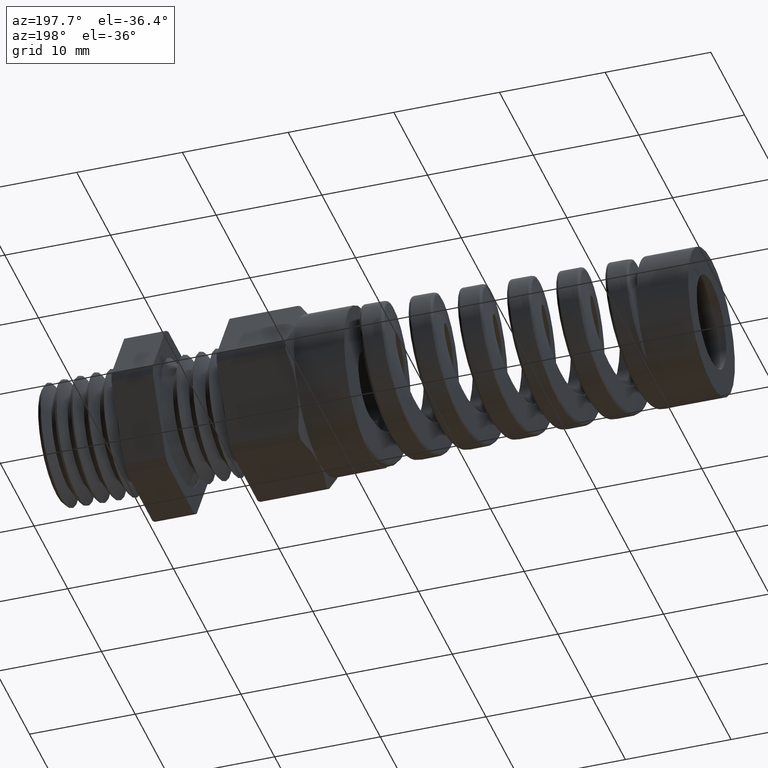
[diagram: clean part render]
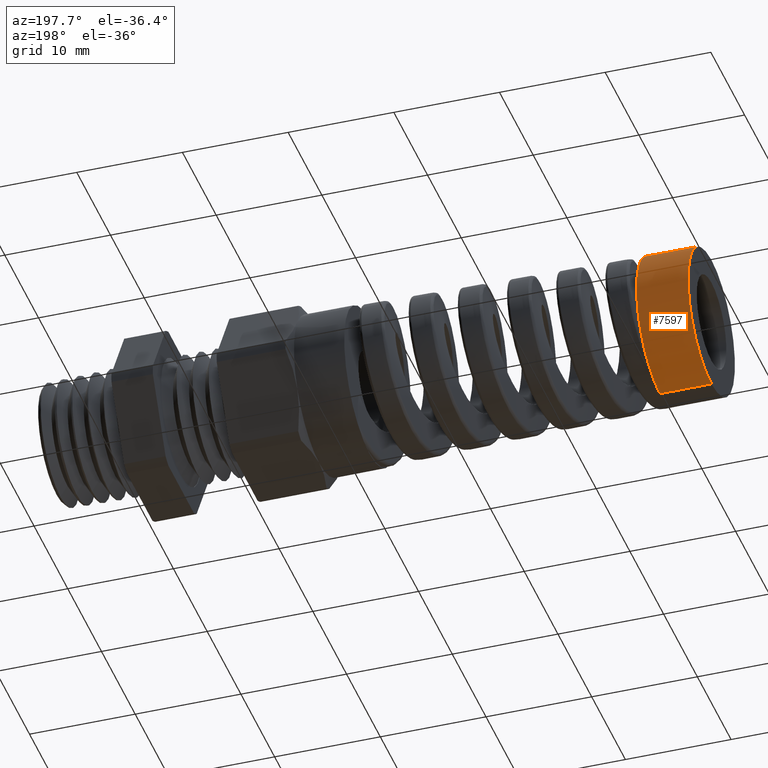
[diagram: same view with one face highlighted and labeled with its STEP entity id]
A machine part, auxiliary view. The second image highlights one B-rep face of the part: STEP entity #7597.
In plain terms, the highlighted cylindrical surface (partial cylindrical patch) has radius 6.9301 mm, axis along (1, 0, 0).
Its self-contained STEP definition (entity closure, byte-faithful):
#1094 = LINE ( 'NONE', #1165, #1164 ) ;
#1151 = CARTESIAN_POINT ( 'NONE',  ( -1.938299999999999900, 0.0000000000000000000, -0.2728399223203811800 ) ) ;
#1152 = DIRECTION ( 'NONE',  ( 0.0000000000000000000, 0.0000000000000000000, -1.000000000000000000 ) ) ;
#1153 = DIRECTION ( 'NONE',  ( 1.000000000000000000, 0.0000000000000000000, 0.0000000000000000000 ) ) ;
#1154 = CARTESIAN_POINT ( 'NONE',  ( -1.938299999999999900, 0.0000000000000000000, 0.0000000000000000000 ) ) ;
#1155 = AXIS2_PLACEMENT_3D ( 'NONE', #1154, #1153, #1152 ) ;
#1156 = CIRCLE ( 'NONE', #1155, 0.2728399223203811800 ) ;
#1157 = CARTESIAN_POINT ( 'NONE',  ( -1.938299999999999900, 0.1106353233695262600, -0.2494021820969335200 ) ) ;
#1158 = DIRECTION ( 'NONE',  ( 0.0000000000000000000, 0.0000000000000000000, 1.000000000000000000 ) ) ;
#1159 = DIRECTION ( 'NONE',  ( -1.000000000000000000, 0.0000000000000000000, 0.0000000000000000000 ) ) ;
#1160 = CARTESIAN_POINT ( 'NONE',  ( -1.938299999999999900, 0.0000000000000000000, 0.0000000000000000000 ) ) ;
#1161 = AXIS2_PLACEMENT_3D ( 'NONE', #1160, #1159, #1158 ) ;
#1162 = CIRCLE ( 'NONE', #1161, 0.2728399223203811200 ) ;
#1163 = DIRECTION ( 'NONE',  ( 1.000000000000000000, 0.0000000000000000000, 0.0000000000000000000 ) ) ;
#1164 = VECTOR ( 'NONE', #1163, 39.37007874015748100 ) ;
#1165 = CARTESIAN_POINT ( 'NONE',  ( -2.129999999999999900, 3.341325375492672300E-017, 0.2728399223203811200 ) ) ;
#1236 = AXIS2_PLACEMENT_3D ( 'NONE', #1309, #1308, #1307 ) ;
#1237 = CYLINDRICAL_SURFACE ( 'NONE', #1236, 0.2728399223203811200 ) ;
#1238 = CIRCLE ( 'NONE', #1306, 0.2728399223203811200 ) ;
#1239 = FACE_OUTER_BOUND ( 'NONE', #7598, .T. ) ;
#1300 = CARTESIAN_POINT ( 'NONE',  ( -1.938299999999999900, 3.341325375492672300E-017, 0.2728399223203811200 ) ) ;
#1301 = CARTESIAN_POINT ( 'NONE',  ( -2.129999999999999900, 0.0000000000000000000, -0.2728399223203811200 ) ) ;
#1302 = CARTESIAN_POINT ( 'NONE',  ( -2.129999999999999900, 3.341325375492672300E-017, 0.2728399223203811200 ) ) ;
#1303 = DIRECTION ( 'NONE',  ( 0.0000000000000000000, 0.0000000000000000000, 1.000000000000000000 ) ) ;
#1304 = DIRECTION ( 'NONE',  ( -1.000000000000000000, 0.0000000000000000000, 0.0000000000000000000 ) ) ;
#1305 = CARTESIAN_POINT ( 'NONE',  ( -2.129999999999999900, 0.0000000000000000000, 0.0000000000000000000 ) ) ;
#1306 = AXIS2_PLACEMENT_3D ( 'NONE', #1305, #1304, #1303 ) ;
#1307 = DIRECTION ( 'NONE',  ( 0.0000000000000000000, 0.0000000000000000000, -1.000000000000000000 ) ) ;
#1308 = DIRECTION ( 'NONE',  ( 1.000000000000000000, 0.0000000000000000000, 0.0000000000000000000 ) ) ;
#1309 = CARTESIAN_POINT ( 'NONE',  ( -2.129999999999999900, 0.0000000000000000000, 0.0000000000000000000 ) ) ;
#1632 = DIRECTION ( 'NONE',  ( 1.000000000000000000, 0.0000000000000000000, 0.0000000000000000000 ) ) ;
#1633 = VECTOR ( 'NONE', #1632, 39.37007874015748100 ) ;
#1634 = CARTESIAN_POINT ( 'NONE',  ( -2.129999999999999900, 0.0000000000000000000, -0.2728399223203811200 ) ) ;
#1635 = LINE ( 'NONE', #1634, #1633 ) ;
#7560 = EDGE_CURVE ( 'NONE', #7601, #7604, #1094, .T. ) ;
#7561 = ORIENTED_EDGE ( 'NONE', *, *, #7562, .T. ) ;
#7562 = EDGE_CURVE ( 'NONE', #7604, #7563, #1162, .T. ) ;
#7563 = VERTEX_POINT ( 'NONE', #1157 ) ;
#7564 = ORIENTED_EDGE ( 'NONE', *, *, #7565, .F. ) ;
#7565 = EDGE_CURVE ( 'NONE', #7566, #7563, #1156, .T. ) ;
#7566 = VERTEX_POINT ( 'NONE', #1151 ) ;
#7597 = ADVANCED_FACE ( 'NONE', ( #1239 ), #1237, .T. ) ;
#7598 = EDGE_LOOP ( 'NONE', ( #7599, #7603, #7561, #7564, #7663 ) ) ;
#7599 = ORIENTED_EDGE ( 'NONE', *, *, #7600, .F. ) ;
#7600 = EDGE_CURVE ( 'NONE', #7601, #7602, #1238, .T. ) ;
#7601 = VERTEX_POINT ( 'NONE', #1302 ) ;
#7602 = VERTEX_POINT ( 'NONE', #1301 ) ;
#7603 = ORIENTED_EDGE ( 'NONE', *, *, #7560, .T. ) ;
#7604 = VERTEX_POINT ( 'NONE', #1300 ) ;
#7663 = ORIENTED_EDGE ( 'NONE', *, *, #7664, .F. ) ;
#7664 = EDGE_CURVE ( 'NONE', #7602, #7566, #1635, .T. ) ;